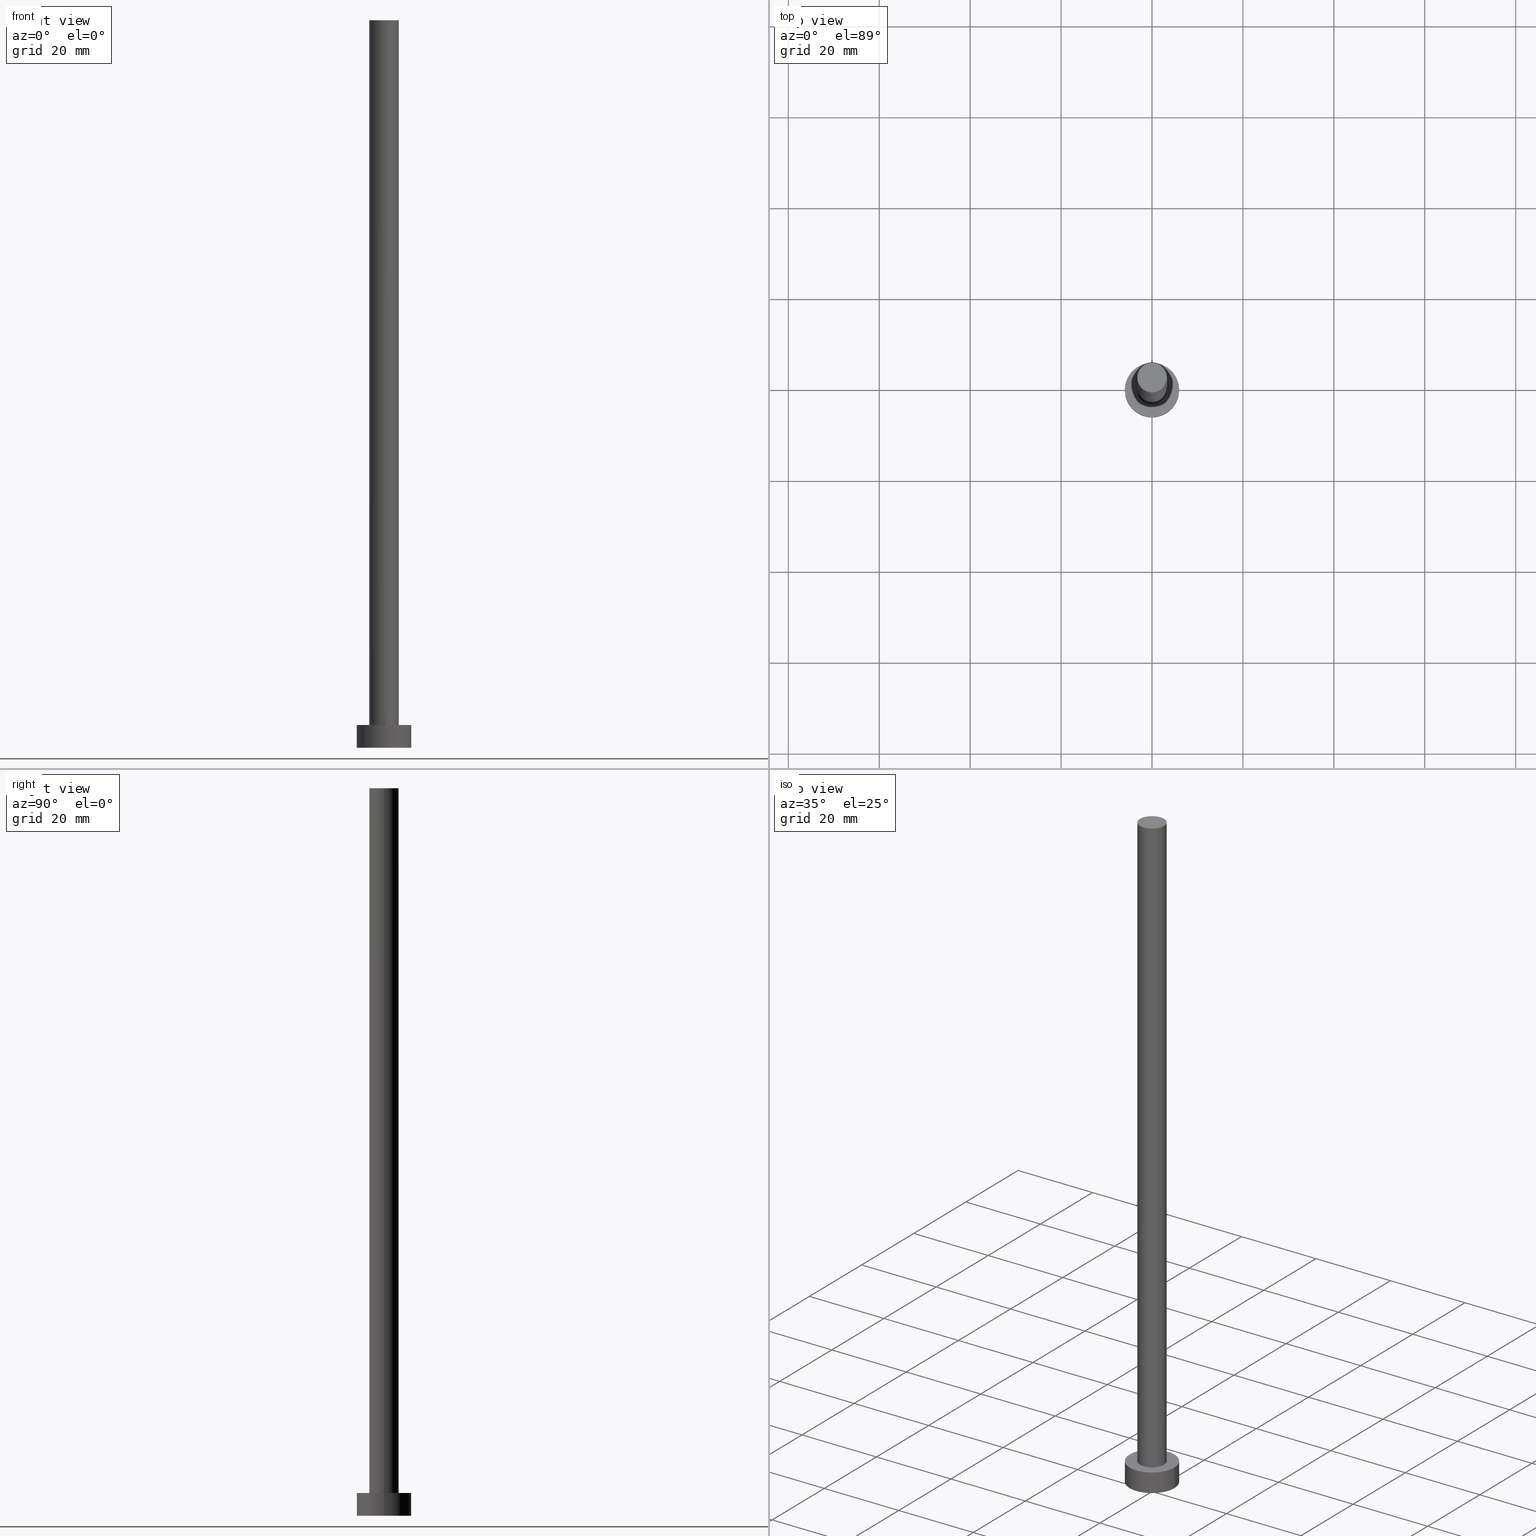
[diagram: canonical four-view strip — front | top / right | iso, engineering-drawing reading convention]
A machine part, canonical four-view strip (front | top / right | iso — engineering-drawing reading convention). The complete STEP part file that produces these views, byte-faithful:
ISO-10303-21;
HEADER;
FILE_DESCRIPTION (( 'STEP AP203' ),
    '1' );
FILE_NAME ('8299.STEP',
    '2023-02-13T14:53:24',
    ( '' ),
    ( '' ),
    'SwSTEP 2.0',
    'SolidWorks 2019',
    '' );
FILE_SCHEMA (( 'CONFIG_CONTROL_DESIGN' ));
ENDSEC;

DATA;
#1 = PERSON ( 'NEUR�EN�', 'NEUR�EN�', 'NEUR�EN�', ('NEUR�EN�'), ('NEUR�EN�'), ('NEUR�EN�') ) ;
#2 = DIRECTION ( 'NONE',  ( -1.000000000000000000, 0.000000000000000000, 0.000000000000000000 ) ) ;
#3 = CIRCLE ( 'NONE', #218, 3.250000000000000444 ) ;
#4 = CARTESIAN_POINT ( 'NONE',  ( -3.250000000000000444, 0.000000000000000000, 5.000000000000000000 ) ) ;
#5 = CARTESIAN_POINT ( 'NONE',  ( 0.000000000000000000, 0.000000000000000000, 5.000000000000000000 ) ) ;
#6 = APPROVAL_DATE_TIME ( #188, #181 ) ;
#7 = LOCAL_TIME ( 15, 53, 24.00000000000000000, #68 ) ;
#8 = APPROVAL_STATUS ( 'not_yet_approved' ) ;
#9 = ORIENTED_EDGE ( 'NONE', *, *, #128, .F. ) ;
#10 = LOCAL_TIME ( 15, 53, 24.00000000000000000, #132 ) ;
#11 = APPLICATION_CONTEXT ( 'configuration controlled 3d designs of mechanical parts and assemblies' ) ;
#12 = AXIS2_PLACEMENT_3D ( 'NONE', #160, #121, #220 ) ;
#13 = APPROVAL_DATE_TIME ( #228, #206 ) ;
#14 = ORIENTED_EDGE ( 'NONE', *, *, #213, .F. ) ;
#15 = CC_DESIGN_PERSON_AND_ORGANIZATION_ASSIGNMENT ( #164, #138, ( #56 ) ) ;
#16 = ORIENTED_EDGE ( 'NONE', *, *, #26, .T. ) ;
#17 = ORIENTED_EDGE ( 'NONE', *, *, #148, .F. ) ;
#18 = VERTEX_POINT ( 'NONE', #215 ) ;
#19 = CARTESIAN_POINT ( 'NONE',  ( -3.250000000000000444, 0.000000000000000000, 160.0000000000000000 ) ) ;
#20 = CIRCLE ( 'NONE', #126, 6.000000000000000888 ) ;
#21 = DIRECTION ( 'NONE',  ( 1.000000000000000000, 0.000000000000000000, -0.000000000000000000 ) ) ;
#22 = DIRECTION ( 'NONE',  ( -0.000000000000000000, -0.000000000000000000, -1.000000000000000000 ) ) ;
#23 = APPROVAL_PERSON_ORGANIZATION ( #90, #181, #27 ) ;
#24 = DIRECTION ( 'NONE',  ( -1.000000000000000000, 0.000000000000000000, 0.000000000000000000 ) ) ;
#25 = CARTESIAN_POINT ( 'NONE',  ( 0.000000000000000000, 0.000000000000000000, 160.0000000000000000 ) ) ;
#26 = EDGE_CURVE ( 'NONE', #177, #214, #102, .T. ) ;
#27 = APPROVAL_ROLE ( '' ) ;
#28 = EDGE_LOOP ( 'NONE', ( #80, #118, #61, #9 ) ) ;
#29 = PERSON_AND_ORGANIZATION_ROLE ( 'design_owner' ) ;
#30 = APPROVAL_DATE_TIME ( #155, #44 ) ;
#31 = COORDINATED_UNIVERSAL_TIME_OFFSET ( 1, 0, .AHEAD. ) ;
#32 = VERTEX_POINT ( 'NONE', #19 ) ;
#33 = ADVANCED_FACE ( 'NONE', ( #253 ), #170, .F. ) ;
#34 = CARTESIAN_POINT ( 'NONE',  ( 0.000000000000000000, 0.000000000000000000, 5.000000000000000000 ) ) ;
#35 = LINE ( 'NONE', #116, #146 ) ;
#36 = APPROVAL_ROLE ( '' ) ;
#37 = VECTOR ( 'NONE', #83, 1000.000000000000000 ) ;
#38 = ORIENTED_EDGE ( 'NONE', *, *, #224, .T. ) ;
#39 = ORIENTED_EDGE ( 'NONE', *, *, #236, .F. ) ;
#40 = EDGE_CURVE ( 'NONE', #214, #177, #20, .T. ) ;
#41 = DIRECTION ( 'NONE',  ( -1.000000000000000000, 0.000000000000000000, 0.000000000000000000 ) ) ;
#42 = AXIS2_PLACEMENT_3D ( 'NONE', #66, #235, #64 ) ;
#43 = FACE_BOUND ( 'NONE', #81, .T. ) ;
#44 = APPROVAL ( #79, 'NEUR�EN�' ) ;
#45 = CYLINDRICAL_SURFACE ( 'NONE', #208, 3.250000000000000444 ) ;
#46 = FACE_OUTER_BOUND ( 'NONE', #78, .T. ) ;
#47 = CARTESIAN_POINT ( 'NONE',  ( 6.000000000000000888, 7.347880794884120722E-16, 5.000000000000000000 ) ) ;
#48 = AXIS2_PLACEMENT_3D ( 'NONE', #25, #105, #234 ) ;
#49 = ADVANCED_BREP_SHAPE_REPRESENTATION ( '8299', ( #240, #70 ), #84 ) ;
#50 = AXIS2_PLACEMENT_3D ( 'NONE', #100, #196, #59 ) ;
#51 = UNCERTAINTY_MEASURE_WITH_UNIT (LENGTH_MEASURE( 1.000000000000000082E-05 ), #255, 'distance_accuracy_value', 'NONE');
#52 = APPLICATION_CONTEXT ( 'configuration controlled 3d designs of mechanical parts and assemblies' ) ;
#53 = SHAPE_DEFINITION_REPRESENTATION ( #95, #49 ) ;
#54 = CALENDAR_DATE ( 2023, 13, 2 ) ;
#55 = ORIENTED_EDGE ( 'NONE', *, *, #73, .F. ) ;
#56 = PRODUCT_DEFINITION ( 'NEZN�M�', '', #165, #133 ) ;
#57 = PERSON_AND_ORGANIZATION_ROLE ( 'classification_officer' ) ;
#58 = DIRECTION ( 'NONE',  ( 1.000000000000000000, 0.000000000000000000, 0.000000000000000000 ) ) ;
#59 = DIRECTION ( 'NONE',  ( 1.000000000000000000, 0.000000000000000000, 0.000000000000000000 ) ) ;
#60 = CYLINDRICAL_SURFACE ( 'NONE', #252, 3.250000000000000444 ) ;
#61 = ORIENTED_EDGE ( 'NONE', *, *, #213, .T. ) ;
#62 = CARTESIAN_POINT ( 'NONE',  ( 0.000000000000000000, 0.000000000000000000, 160.0000000000000000 ) ) ;
#63 = EDGE_CURVE ( 'NONE', #18, #32, #3, .T. ) ;
#64 = DIRECTION ( 'NONE',  ( 1.000000000000000000, 0.000000000000000000, 0.000000000000000000 ) ) ;
#65 = CARTESIAN_POINT ( 'NONE',  ( -6.000000000000000888, 0.000000000000000000, 5.000000000000000000 ) ) ;
#66 = CARTESIAN_POINT ( 'NONE',  ( 0.000000000000000000, 0.000000000000000000, 0.000000000000000000 ) ) ;
#67 = CC_DESIGN_APPROVAL ( #181, ( #56 ) ) ;
#68 = COORDINATED_UNIVERSAL_TIME_OFFSET ( 1, 0, .AHEAD. ) ;
#69 = CC_DESIGN_PERSON_AND_ORGANIZATION_ASSIGNMENT ( #72, #227, ( #165 ) ) ;
#70 = AXIS2_PLACEMENT_3D ( 'NONE', #242, #147, #163 ) ;
#71 = AXIS2_PLACEMENT_3D ( 'NONE', #88, #198, #203 ) ;
#72 = PERSON_AND_ORGANIZATION ( #1, #197 ) ;
#73 = EDGE_CURVE ( 'NONE', #18, #210, #35, .T. ) ;
#74 = DIRECTION ( 'NONE',  ( 0.000000000000000000, 0.000000000000000000, 1.000000000000000000 ) ) ;
#75 = LOCAL_TIME ( 15, 53, 24.00000000000000000, #117 ) ;
#76 = COORDINATED_UNIVERSAL_TIME_OFFSET ( 1, 0, .AHEAD. ) ;
#77 = ORIENTED_EDGE ( 'NONE', *, *, #40, .F. ) ;
#78 = EDGE_LOOP ( 'NONE', ( #248, #192 ) ) ;
#79 = APPROVAL_STATUS ( 'not_yet_approved' ) ;
#80 = ORIENTED_EDGE ( 'NONE', *, *, #63, .F. ) ;
#81 = EDGE_LOOP ( 'NONE', ( #39, #14 ) ) ;
#82 = DIRECTION ( 'NONE',  ( -0.000000000000000000, -0.000000000000000000, -1.000000000000000000 ) ) ;
#83 = DIRECTION ( 'NONE',  ( -0.000000000000000000, -0.000000000000000000, -1.000000000000000000 ) ) ;
#84 =( GEOMETRIC_REPRESENTATION_CONTEXT ( 3 ) GLOBAL_UNCERTAINTY_ASSIGNED_CONTEXT ( ( #51 ) ) GLOBAL_UNIT_ASSIGNED_CONTEXT ( ( #255, #182, #241 ) ) REPRESENTATION_CONTEXT ( 'NONE', 'WORKASPACE' ) );
#85 = DIRECTION ( 'NONE',  ( -0.000000000000000000, -0.000000000000000000, -1.000000000000000000 ) ) ;
#86 = DIRECTION ( 'NONE',  ( -1.000000000000000000, 0.000000000000000000, 0.000000000000000000 ) ) ;
#87 = CC_DESIGN_DATE_AND_TIME_ASSIGNMENT ( #225, #93, ( #56 ) ) ;
#88 = CARTESIAN_POINT ( 'NONE',  ( 0.000000000000000000, 0.000000000000000000, 0.000000000000000000 ) ) ;
#89 = APPROVAL_PERSON_ORGANIZATION ( #247, #44, #36 ) ;
#90 = PERSON_AND_ORGANIZATION ( #1, #197 ) ;
#91 = CC_DESIGN_PERSON_AND_ORGANIZATION_ASSIGNMENT ( #130, #174, ( #165 ) ) ;
#92 = VECTOR ( 'NONE', #162, 1000.000000000000000 ) ;
#93 = DATE_TIME_ROLE ( 'creation_date' ) ;
#94 = EDGE_LOOP ( 'NONE', ( #77, #230, #139, #135 ) ) ;
#95 = PRODUCT_DEFINITION_SHAPE ( 'NONE', 'NONE',  #56 ) ;
#96 = SECURITY_CLASSIFICATION_LEVEL ( 'unclassified' ) ;
#97 = VERTEX_POINT ( 'NONE', #175 ) ;
#98 = DIRECTION ( 'NONE',  ( 1.000000000000000000, 0.000000000000000000, -0.000000000000000000 ) ) ;
#99 = ORIENTED_EDGE ( 'NONE', *, *, #236, .T. ) ;
#100 = CARTESIAN_POINT ( 'NONE',  ( 0.000000000000000000, 0.000000000000000000, 5.000000000000000000 ) ) ;
#101 = CIRCLE ( 'NONE', #150, 3.250000000000000444 ) ;
#102 = CIRCLE ( 'NONE', #50, 6.000000000000000888 ) ;
#103 = CARTESIAN_POINT ( 'NONE',  ( 6.000000000000000888, 7.347880794884120722E-16, 5.000000000000000000 ) ) ;
#104 = CARTESIAN_POINT ( 'NONE',  ( 0.000000000000000000, 0.000000000000000000, 5.000000000000000000 ) ) ;
#105 = DIRECTION ( 'NONE',  ( 0.000000000000000000, 0.000000000000000000, 1.000000000000000000 ) ) ;
#106 = CARTESIAN_POINT ( 'NONE',  ( 0.000000000000000000, 0.000000000000000000, 5.000000000000000000 ) ) ;
#107 = CALENDAR_DATE ( 2023, 13, 2 ) ;
#108 = AXIS2_PLACEMENT_3D ( 'NONE', #141, #216, #21 ) ;
#109 = ADVANCED_FACE ( 'NONE', ( #154 ), #60, .T. ) ;
#110 = APPLICATION_PROTOCOL_DEFINITION ( 'international standard', 'config_control_design', 1994, #52 ) ;
#111 = CALENDAR_DATE ( 2023, 13, 2 ) ;
#112 = CC_DESIGN_APPROVAL ( #44, ( #189 ) ) ;
#113 = CIRCLE ( 'NONE', #42, 6.000000000000000888 ) ;
#114 = CARTESIAN_POINT ( 'NONE',  ( 0.000000000000000000, 0.000000000000000000, 160.0000000000000000 ) ) ;
#115 = PERSON_AND_ORGANIZATION ( #1, #197 ) ;
#116 = CARTESIAN_POINT ( 'NONE',  ( 3.250000000000000444, 3.980102097228898231E-16, 160.0000000000000000 ) ) ;
#117 = COORDINATED_UNIVERSAL_TIME_OFFSET ( 1, 0, .AHEAD. ) ;
#118 = ORIENTED_EDGE ( 'NONE', *, *, #73, .T. ) ;
#119 = ORIENTED_EDGE ( 'NONE', *, *, #26, .F. ) ;
#120 = PRODUCT ( '8299', '8299', '', ( #239 ) ) ;
#121 = DIRECTION ( 'NONE',  ( 0.000000000000000000, 0.000000000000000000, 1.000000000000000000 ) ) ;
#122 = CIRCLE ( 'NONE', #251, 3.250000000000000444 ) ;
#123 = PLANE ( 'NONE',  #108 ) ;
#124 = CARTESIAN_POINT ( 'NONE',  ( 0.000000000000000000, 0.000000000000000000, 5.000000000000000000 ) ) ;
#125 = PLANE ( 'NONE',  #48 ) ;
#126 = AXIS2_PLACEMENT_3D ( 'NONE', #34, #229, #58 ) ;
#127 = LINE ( 'NONE', #65, #172 ) ;
#128 = EDGE_CURVE ( 'NONE', #32, #134, #217, .T. ) ;
#129 = ORIENTED_EDGE ( 'NONE', *, *, #40, .T. ) ;
#130 = PERSON_AND_ORGANIZATION ( #1, #197 ) ;
#131 = EDGE_CURVE ( 'NONE', #97, #209, #184, .T. ) ;
#132 = COORDINATED_UNIVERSAL_TIME_OFFSET ( 1, 0, .AHEAD. ) ;
#133 = DESIGN_CONTEXT ( 'detailed design', #52, 'design' ) ;
#134 = VERTEX_POINT ( 'NONE', #4 ) ;
#135 = ORIENTED_EDGE ( 'NONE', *, *, #224, .F. ) ;
#136 = DIRECTION ( 'NONE',  ( 0.000000000000000000, 0.000000000000000000, 1.000000000000000000 ) ) ;
#137 = EDGE_LOOP ( 'NONE', ( #16, #129 ) ) ;
#138 = PERSON_AND_ORGANIZATION_ROLE ( 'creator' ) ;
#139 = ORIENTED_EDGE ( 'NONE', *, *, #166, .T. ) ;
#140 = CYLINDRICAL_SURFACE ( 'NONE', #145, 6.000000000000000888 ) ;
#141 = CARTESIAN_POINT ( 'NONE',  ( 0.000000000000000000, 0.000000000000000000, 5.000000000000000000 ) ) ;
#142 = ADVANCED_FACE ( 'NONE', ( #180 ), #45, .T. ) ;
#143 = CYLINDRICAL_SURFACE ( 'NONE', #245, 6.000000000000000888 ) ;
#144 = CARTESIAN_POINT ( 'NONE',  ( 0.000000000000000000, 0.000000000000000000, 160.0000000000000000 ) ) ;
#145 = AXIS2_PLACEMENT_3D ( 'NONE', #5, #85, #24 ) ;
#146 = VECTOR ( 'NONE', #194, 1000.000000000000000 ) ;
#147 = DIRECTION ( 'NONE',  ( 0.000000000000000000, 0.000000000000000000, 1.000000000000000000 ) ) ;
#148 = EDGE_CURVE ( 'NONE', #32, #18, #167, .T. ) ;
#149 = DATE_AND_TIME ( #249, #222 ) ;
#150 = AXIS2_PLACEMENT_3D ( 'NONE', #104, #201, #233 ) ;
#151 = ORIENTED_EDGE ( 'NONE', *, *, #166, .F. ) ;
#152 = AXIS2_PLACEMENT_3D ( 'NONE', #244, #74, #98 ) ;
#153 = ADVANCED_FACE ( 'NONE', ( #46 ), #125, .T. ) ;
#154 = FACE_OUTER_BOUND ( 'NONE', #28, .T. ) ;
#155 = DATE_AND_TIME ( #168, #75 ) ;
#156 = LOCAL_TIME ( 15, 53, 24.00000000000000000, #31 ) ;
#157 = ORIENTED_EDGE ( 'NONE', *, *, #207, .F. ) ;
#158 = ORIENTED_EDGE ( 'NONE', *, *, #131, .F. ) ;
#159 = CARTESIAN_POINT ( 'NONE',  ( 6.000000000000000888, 7.347880794884120722E-16, 0.000000000000000000 ) ) ;
#160 = CARTESIAN_POINT ( 'NONE',  ( 0.000000000000000000, 0.000000000000000000, 160.0000000000000000 ) ) ;
#161 = LINE ( 'NONE', #103, #92 ) ;
#162 = DIRECTION ( 'NONE',  ( -0.000000000000000000, -0.000000000000000000, -1.000000000000000000 ) ) ;
#163 = DIRECTION ( 'NONE',  ( 1.000000000000000000, 0.000000000000000000, 0.000000000000000000 ) ) ;
#164 = PERSON_AND_ORGANIZATION ( #1, #197 ) ;
#165 = PRODUCT_DEFINITION_FORMATION_WITH_SPECIFIED_SOURCE ( 'LIBOVOLN�', '', #120, .NOT_KNOWN. ) ;
#166 = EDGE_CURVE ( 'NONE', #209, #97, #113, .T. ) ;
#167 = CIRCLE ( 'NONE', #12, 3.250000000000000444 ) ;
#168 = CALENDAR_DATE ( 2023, 13, 2 ) ;
#169 = ADVANCED_FACE ( 'NONE', ( #202 ), #140, .T. ) ;
#170 = PLANE ( 'NONE',  #152 ) ;
#171 = PERSON_AND_ORGANIZATION ( #1, #197 ) ;
#172 = VECTOR ( 'NONE', #22, 1000.000000000000000 ) ;
#173 = EDGE_LOOP ( 'NONE', ( #157, #119, #38, #191 ) ) ;
#174 = PERSON_AND_ORGANIZATION_ROLE ( 'creator' ) ;
#175 = CARTESIAN_POINT ( 'NONE',  ( -6.000000000000000888, 0.000000000000000000, 0.000000000000000000 ) ) ;
#176 = APPROVAL_STATUS ( 'not_yet_approved' ) ;
#177 = VERTEX_POINT ( 'NONE', #200 ) ;
#178 = ADVANCED_FACE ( 'NONE', ( #185 ), #143, .T. ) ;
#179 = CARTESIAN_POINT ( 'NONE',  ( 3.250000000000000444, 3.980102097228898231E-16, 5.000000000000000000 ) ) ;
#180 = FACE_OUTER_BOUND ( 'NONE', #195, .T. ) ;
#181 = APPROVAL ( #8, 'NEUR�EN�' ) ;
#182 =( NAMED_UNIT ( * ) PLANE_ANGLE_UNIT ( ) SI_UNIT ( $, .RADIAN. ) );
#183 = APPROVAL_PERSON_ORGANIZATION ( #115, #206, #212 ) ;
#184 = CIRCLE ( 'NONE', #71, 6.000000000000000888 ) ;
#185 = FACE_OUTER_BOUND ( 'NONE', #173, .T. ) ;
#186 = CC_DESIGN_DATE_AND_TIME_ASSIGNMENT ( #149, #193, ( #189 ) ) ;
#187 = DIRECTION ( 'NONE',  ( -0.000000000000000000, -0.000000000000000000, -1.000000000000000000 ) ) ;
#188 = DATE_AND_TIME ( #107, #7 ) ;
#189 = SECURITY_CLASSIFICATION ( '', '', #96 ) ;
#190 = CC_DESIGN_APPROVAL ( #206, ( #165 ) ) ;
#191 = ORIENTED_EDGE ( 'NONE', *, *, #131, .T. ) ;
#192 = ORIENTED_EDGE ( 'NONE', *, *, #63, .T. ) ;
#193 = DATE_TIME_ROLE ( 'classification_date' ) ;
#194 = DIRECTION ( 'NONE',  ( -0.000000000000000000, -0.000000000000000000, -1.000000000000000000 ) ) ;
#195 = EDGE_LOOP ( 'NONE', ( #55, #17, #250, #99 ) ) ;
#196 = DIRECTION ( 'NONE',  ( 0.000000000000000000, 0.000000000000000000, 1.000000000000000000 ) ) ;
#197 = ORGANIZATION ( 'NEUR�EN�', 'NEUR�EN�', '' ) ;
#198 = DIRECTION ( 'NONE',  ( 0.000000000000000000, 0.000000000000000000, 1.000000000000000000 ) ) ;
#199 = ADVANCED_FACE ( 'NONE', ( #43, #231 ), #123, .T. ) ;
#200 = CARTESIAN_POINT ( 'NONE',  ( -6.000000000000000888, 0.000000000000000000, 5.000000000000000000 ) ) ;
#201 = DIRECTION ( 'NONE',  ( 0.000000000000000000, 0.000000000000000000, 1.000000000000000000 ) ) ;
#202 = FACE_OUTER_BOUND ( 'NONE', #94, .T. ) ;
#203 = DIRECTION ( 'NONE',  ( 1.000000000000000000, 0.000000000000000000, 0.000000000000000000 ) ) ;
#204 = PRODUCT_RELATED_PRODUCT_CATEGORY ( 'detail', '', ( #120 ) ) ;
#205 = APPLICATION_PROTOCOL_DEFINITION ( 'international standard', 'config_control_design', 1994, #11 ) ;
#206 = APPROVAL ( #176, 'NEUR�EN�' ) ;
#207 = EDGE_CURVE ( 'NONE', #214, #209, #161, .T. ) ;
#208 = AXIS2_PLACEMENT_3D ( 'NONE', #144, #219, #41 ) ;
#209 = VERTEX_POINT ( 'NONE', #159 ) ;
#210 = VERTEX_POINT ( 'NONE', #179 ) ;
#211 = DIRECTION ( 'NONE',  ( 1.000000000000000000, 0.000000000000000000, 0.000000000000000000 ) ) ;
#212 = APPROVAL_ROLE ( '' ) ;
#213 = EDGE_CURVE ( 'NONE', #210, #134, #122, .T. ) ;
#214 = VERTEX_POINT ( 'NONE', #47 ) ;
#215 = CARTESIAN_POINT ( 'NONE',  ( 3.250000000000000444, 3.980102097228898231E-16, 160.0000000000000000 ) ) ;
#216 = DIRECTION ( 'NONE',  ( 0.000000000000000000, 0.000000000000000000, 1.000000000000000000 ) ) ;
#217 = LINE ( 'NONE', #237, #37 ) ;
#218 = AXIS2_PLACEMENT_3D ( 'NONE', #114, #136, #211 ) ;
#219 = DIRECTION ( 'NONE',  ( -0.000000000000000000, -0.000000000000000000, -1.000000000000000000 ) ) ;
#220 = DIRECTION ( 'NONE',  ( 1.000000000000000000, 0.000000000000000000, 0.000000000000000000 ) ) ;
#221 = DIRECTION ( 'NONE',  ( 1.000000000000000000, 0.000000000000000000, 0.000000000000000000 ) ) ;
#222 = LOCAL_TIME ( 15, 53, 24.00000000000000000, #76 ) ;
#223 = CLOSED_SHELL ( 'NONE', ( #109, #169, #178, #199, #33, #142, #153 ) ) ;
#224 = EDGE_CURVE ( 'NONE', #177, #97, #127, .T. ) ;
#225 = DATE_AND_TIME ( #54, #10 ) ;
#226 = PERSON_AND_ORGANIZATION ( #1, #197 ) ;
#227 = PERSON_AND_ORGANIZATION_ROLE ( 'design_supplier' ) ;
#228 = DATE_AND_TIME ( #111, #156 ) ;
#229 = DIRECTION ( 'NONE',  ( 0.000000000000000000, 0.000000000000000000, 1.000000000000000000 ) ) ;
#230 = ORIENTED_EDGE ( 'NONE', *, *, #207, .T. ) ;
#231 = FACE_OUTER_BOUND ( 'NONE', #137, .T. ) ;
#232 = CC_DESIGN_PERSON_AND_ORGANIZATION_ASSIGNMENT ( #226, #29, ( #120 ) ) ;
#233 = DIRECTION ( 'NONE',  ( 1.000000000000000000, 0.000000000000000000, 0.000000000000000000 ) ) ;
#234 = DIRECTION ( 'NONE',  ( 1.000000000000000000, 0.000000000000000000, -0.000000000000000000 ) ) ;
#235 = DIRECTION ( 'NONE',  ( 0.000000000000000000, 0.000000000000000000, 1.000000000000000000 ) ) ;
#236 = EDGE_CURVE ( 'NONE', #134, #210, #101, .T. ) ;
#237 = CARTESIAN_POINT ( 'NONE',  ( -3.250000000000000444, 0.000000000000000000, 160.0000000000000000 ) ) ;
#238 = CC_DESIGN_SECURITY_CLASSIFICATION ( #189, ( #165 ) ) ;
#239 = MECHANICAL_CONTEXT ( 'NONE', #11, 'mechanical' ) ;
#240 = MANIFOLD_SOLID_BREP ( 'P�idat vysunut�m3', #223 ) ;
#241 =( NAMED_UNIT ( * ) SI_UNIT ( $, .STERADIAN. ) SOLID_ANGLE_UNIT ( ) );
#242 = CARTESIAN_POINT ( 'NONE',  ( 0.000000000000000000, 0.000000000000000000, 0.000000000000000000 ) ) ;
#243 = CC_DESIGN_PERSON_AND_ORGANIZATION_ASSIGNMENT ( #171, #57, ( #189 ) ) ;
#244 = CARTESIAN_POINT ( 'NONE',  ( 0.000000000000000000, 0.000000000000000000, 0.000000000000000000 ) ) ;
#245 = AXIS2_PLACEMENT_3D ( 'NONE', #106, #82, #86 ) ;
#246 = EDGE_LOOP ( 'NONE', ( #158, #151 ) ) ;
#247 = PERSON_AND_ORGANIZATION ( #1, #197 ) ;
#248 = ORIENTED_EDGE ( 'NONE', *, *, #148, .T. ) ;
#249 = CALENDAR_DATE ( 2023, 13, 2 ) ;
#250 = ORIENTED_EDGE ( 'NONE', *, *, #128, .T. ) ;
#251 = AXIS2_PLACEMENT_3D ( 'NONE', #124, #254, #221 ) ;
#252 = AXIS2_PLACEMENT_3D ( 'NONE', #62, #187, #2 ) ;
#253 = FACE_OUTER_BOUND ( 'NONE', #246, .T. ) ;
#254 = DIRECTION ( 'NONE',  ( 0.000000000000000000, 0.000000000000000000, 1.000000000000000000 ) ) ;
#255 =( LENGTH_UNIT ( ) NAMED_UNIT ( * ) SI_UNIT ( .MILLI., .METRE. ) );
ENDSEC;
END-ISO-10303-21;
